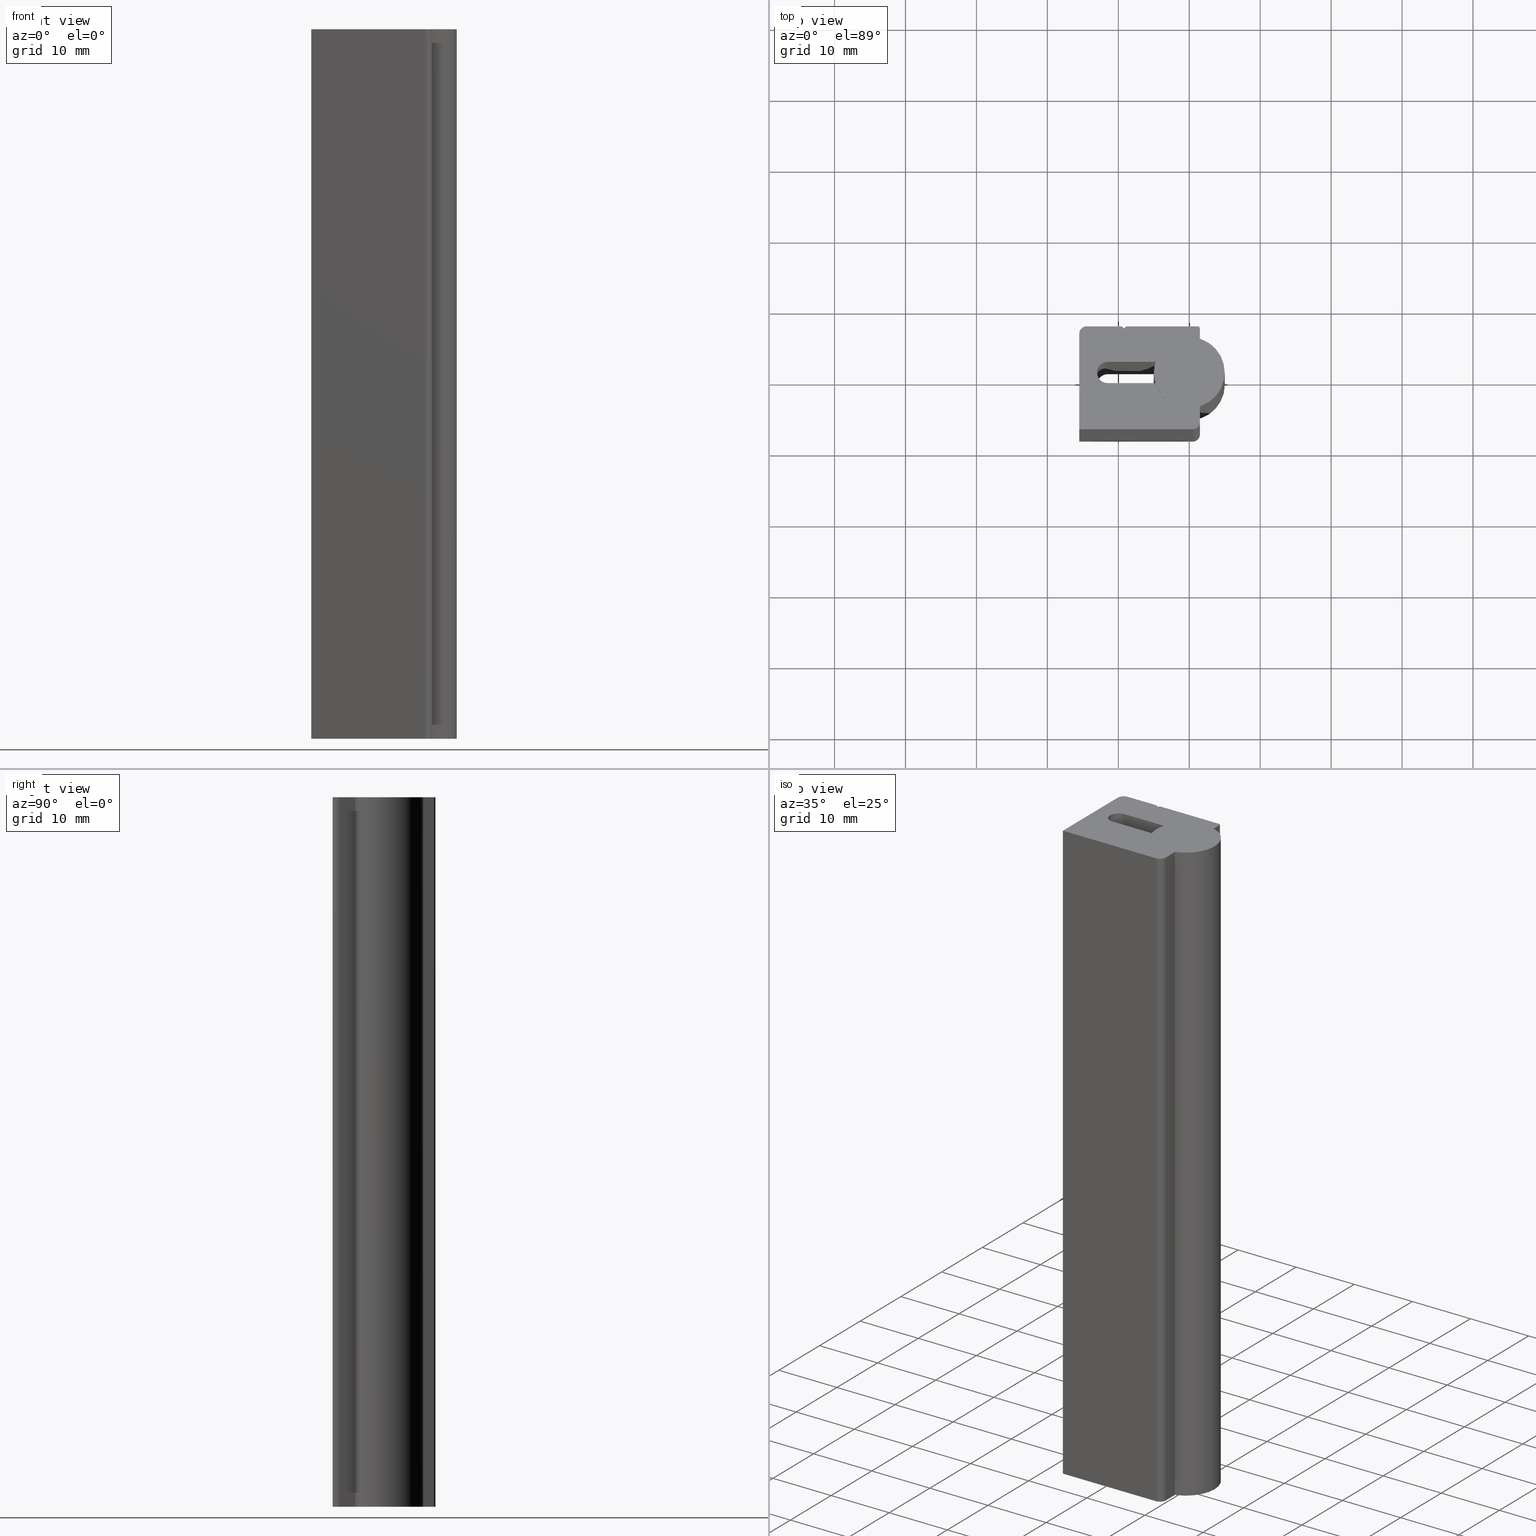
[diagram: canonical four-view strip — front | top / right | iso, engineering-drawing reading convention]
A machine part, canonical four-view strip (front | top / right | iso — engineering-drawing reading convention). The complete STEP part file that produces these views, byte-faithful:
ISO-10303-21;
HEADER;
/* Generated by software containing ST-Developer
 * from STEP Tools, Inc. (www.steptools.com) 
 */

FILE_DESCRIPTION(
/* description */ ('PROFILO GUIDA LINEARE GS10'),
/* implementation_level */ '2;1');

FILE_NAME(
/* name */ 
'C:\\Users\\tecnico5\\Desktop\\SITOWEB\\BPRGD0000068\\BPRGD0000068.stp',

/* time_stamp */ '2022-07-27T09:05:28+02:00',
/* author */ ('tecnico3.vi'),
/* organization */ (''),
/* preprocessor_version */ 'ST-DEVELOPER v18.1',
/* originating_system */ 'Autodesk Inventor 2022',
/* authorisation */ '');

FILE_SCHEMA (('AUTOMOTIVE_DESIGN { 1 0 10303 214 3 1 1 }'));
ENDSEC;

DATA;
#10=MECHANICAL_DESIGN_GEOMETRIC_PRESENTATION_REPRESENTATION('',(#26,#27,
#28),#715);
#11=CONTEXT_DEPENDENT_OVER_RIDING_STYLED_ITEM('',(#747),#730,#28,(#17));
#12=MAPPED_ITEM('',#13,#476);
#13=REPRESENTATION_MAP(#476,#728);
#14=ITEM_DEFINED_TRANSFORMATION($,$,#437,#474);
#15=ITEM_DEFINED_TRANSFORMATION($,$,#468,#475);
#16=(
REPRESENTATION_RELATIONSHIP($,$,#729,#728)
REPRESENTATION_RELATIONSHIP_WITH_TRANSFORMATION(#14)
SHAPE_REPRESENTATION_RELATIONSHIP()
);
#17=(
REPRESENTATION_RELATIONSHIP($,$,#730,#728)
REPRESENTATION_RELATIONSHIP_WITH_TRANSFORMATION(#15)
SHAPE_REPRESENTATION_RELATIONSHIP()
);
#18=CONTEXT_DEPENDENT_SHAPE_REPRESENTATION(#16,#726);
#19=CONTEXT_DEPENDENT_SHAPE_REPRESENTATION(#17,#727);
#20=NEXT_ASSEMBLY_USAGE_OCCURRENCE('958510003971:1','958510003971:1',
'958510003971:1',#732,#733,'958510003971:1');
#21=NEXT_ASSEMBLY_USAGE_OCCURRENCE('Parte1:1','Parte1:1','Parte1:1',#732,
#734,'Parte1:1');
#22=SHAPE_REPRESENTATION_RELATIONSHIP('SRR','None',#729,#24);
#23=SHAPE_REPRESENTATION_RELATIONSHIP('SRR','None',#730,#25);
#24=ADVANCED_BREP_SHAPE_REPRESENTATION('',(#29),#713);
#25=ADVANCED_BREP_SHAPE_REPRESENTATION('',(#30),#714);
#26=STYLED_ITEM('',(#748),#29);
#27=STYLED_ITEM('',(#749),#30);
#28=STYLED_ITEM('',(#750),#12);
#29=MANIFOLD_SOLID_BREP('Solido1',#390);
#30=MANIFOLD_SOLID_BREP('Solido1',#391);
#31=CIRCLE('',#441,1.);
#32=CIRCLE('',#442,1.);
#33=CIRCLE('',#448,0.3);
#34=CIRCLE('',#449,0.3);
#35=CIRCLE('',#452,5.);
#36=CIRCLE('',#453,5.);
#37=CIRCLE('',#456,1.49999999999616);
#38=CIRCLE('',#457,1.49999999999616);
#39=CIRCLE('',#460,5.00000000000274);
#40=CIRCLE('',#461,5.00000000000274);
#41=CIRCLE('',#464,1.);
#42=CIRCLE('',#465,1.);
#43=CIRCLE('',#470,5.);
#44=CIRCLE('',#471,5.);
#45=CYLINDRICAL_SURFACE('',#440,1.);
#46=CYLINDRICAL_SURFACE('',#447,0.3);
#47=CYLINDRICAL_SURFACE('',#451,5.);
#48=CYLINDRICAL_SURFACE('',#455,1.49999999999616);
#49=CYLINDRICAL_SURFACE('',#459,5.00000000000274);
#50=CYLINDRICAL_SURFACE('',#463,1.);
#51=CYLINDRICAL_SURFACE('',#469,5.);
#52=FACE_OUTER_BOUND('',#73,.T.);
#53=FACE_OUTER_BOUND('',#74,.T.);
#54=FACE_OUTER_BOUND('',#75,.T.);
#55=FACE_OUTER_BOUND('',#76,.T.);
#56=FACE_OUTER_BOUND('',#77,.T.);
#57=FACE_OUTER_BOUND('',#78,.T.);
#58=FACE_OUTER_BOUND('',#79,.T.);
#59=FACE_OUTER_BOUND('',#80,.T.);
#60=FACE_OUTER_BOUND('',#81,.T.);
#61=FACE_OUTER_BOUND('',#82,.T.);
#62=FACE_OUTER_BOUND('',#83,.T.);
#63=FACE_OUTER_BOUND('',#84,.T.);
#64=FACE_OUTER_BOUND('',#85,.T.);
#65=FACE_OUTER_BOUND('',#86,.T.);
#66=FACE_OUTER_BOUND('',#87,.T.);
#67=FACE_OUTER_BOUND('',#88,.T.);
#68=FACE_OUTER_BOUND('',#89,.T.);
#69=FACE_OUTER_BOUND('',#90,.T.);
#70=FACE_OUTER_BOUND('',#91,.T.);
#71=FACE_OUTER_BOUND('',#92,.T.);
#72=FACE_OUTER_BOUND('',#93,.T.);
#73=EDGE_LOOP('',(#253,#254,#255,#256));
#74=EDGE_LOOP('',(#257,#258,#259,#260));
#75=EDGE_LOOP('',(#261,#262,#263,#264));
#76=EDGE_LOOP('',(#265,#266,#267,#268));
#77=EDGE_LOOP('',(#269,#270,#271,#272));
#78=EDGE_LOOP('',(#273,#274,#275,#276));
#79=EDGE_LOOP('',(#277,#278,#279,#280));
#80=EDGE_LOOP('',(#281,#282,#283,#284));
#81=EDGE_LOOP('',(#285,#286,#287,#288));
#82=EDGE_LOOP('',(#289,#290,#291,#292));
#83=EDGE_LOOP('',(#293,#294,#295,#296));
#84=EDGE_LOOP('',(#297,#298,#299,#300));
#85=EDGE_LOOP('',(#301,#302,#303,#304));
#86=EDGE_LOOP('',(#305,#306,#307,#308));
#87=EDGE_LOOP('',(#309,#310,#311,#312));
#88=EDGE_LOOP('',(#313,#314,#315,#316));
#89=EDGE_LOOP('',(#317,#318,#319,#320,#321,#322,#323,#324,#325,#326,#327,
#328,#329,#330,#331,#332));
#90=EDGE_LOOP('',(#333,#334,#335,#336,#337,#338,#339,#340,#341,#342,#343,
#344,#345,#346,#347,#348));
#91=EDGE_LOOP('',(#349,#350,#351,#352));
#92=EDGE_LOOP('',(#353));
#93=EDGE_LOOP('',(#354));
#94=LINE('',#601,#131);
#95=LINE('',#603,#132);
#96=LINE('',#605,#133);
#97=LINE('',#606,#134);
#98=LINE('',#609,#135);
#99=LINE('',#611,#136);
#100=LINE('',#612,#137);
#101=LINE('',#618,#138);
#102=LINE('',#621,#139);
#103=LINE('',#623,#140);
#104=LINE('',#624,#141);
#105=LINE('',#627,#142);
#106=LINE('',#629,#143);
#107=LINE('',#630,#144);
#108=LINE('',#633,#145);
#109=LINE('',#635,#146);
#110=LINE('',#636,#147);
#111=LINE('',#639,#148);
#112=LINE('',#641,#149);
#113=LINE('',#642,#150);
#114=LINE('',#648,#151);
#115=LINE('',#651,#152);
#116=LINE('',#653,#153);
#117=LINE('',#654,#154);
#118=LINE('',#660,#155);
#119=LINE('',#663,#156);
#120=LINE('',#665,#157);
#121=LINE('',#666,#158);
#122=LINE('',#672,#159);
#123=LINE('',#675,#160);
#124=LINE('',#677,#161);
#125=LINE('',#678,#162);
#126=LINE('',#684,#163);
#127=LINE('',#687,#164);
#128=LINE('',#689,#165);
#129=LINE('',#690,#166);
#130=LINE('',#701,#167);
#131=VECTOR('',#483,10.);
#132=VECTOR('',#484,10.);
#133=VECTOR('',#485,10.);
#134=VECTOR('',#486,10.);
#135=VECTOR('',#489,10.);
#136=VECTOR('',#490,10.);
#137=VECTOR('',#491,10.);
#138=VECTOR('',#498,10.);
#139=VECTOR('',#501,10.);
#140=VECTOR('',#502,10.);
#141=VECTOR('',#503,10.);
#142=VECTOR('',#506,10.);
#143=VECTOR('',#507,10.);
#144=VECTOR('',#508,10.);
#145=VECTOR('',#511,10.);
#146=VECTOR('',#512,10.);
#147=VECTOR('',#513,10.);
#148=VECTOR('',#516,10.);
#149=VECTOR('',#517,10.);
#150=VECTOR('',#518,10.);
#151=VECTOR('',#525,10.);
#152=VECTOR('',#528,10.);
#153=VECTOR('',#529,10.);
#154=VECTOR('',#530,10.);
#155=VECTOR('',#537,10.);
#156=VECTOR('',#540,10.);
#157=VECTOR('',#541,10.);
#158=VECTOR('',#542,10.);
#159=VECTOR('',#549,10.);
#160=VECTOR('',#552,10.);
#161=VECTOR('',#553,10.);
#162=VECTOR('',#554,10.);
#163=VECTOR('',#561,10.);
#164=VECTOR('',#564,10.);
#165=VECTOR('',#565,10.);
#166=VECTOR('',#566,10.);
#167=VECTOR('',#583,5.);
#168=VERTEX_POINT('',#599);
#169=VERTEX_POINT('',#600);
#170=VERTEX_POINT('',#602);
#171=VERTEX_POINT('',#604);
#172=VERTEX_POINT('',#608);
#173=VERTEX_POINT('',#610);
#174=VERTEX_POINT('',#614);
#175=VERTEX_POINT('',#616);
#176=VERTEX_POINT('',#620);
#177=VERTEX_POINT('',#622);
#178=VERTEX_POINT('',#626);
#179=VERTEX_POINT('',#628);
#180=VERTEX_POINT('',#632);
#181=VERTEX_POINT('',#634);
#182=VERTEX_POINT('',#638);
#183=VERTEX_POINT('',#640);
#184=VERTEX_POINT('',#644);
#185=VERTEX_POINT('',#646);
#186=VERTEX_POINT('',#650);
#187=VERTEX_POINT('',#652);
#188=VERTEX_POINT('',#656);
#189=VERTEX_POINT('',#658);
#190=VERTEX_POINT('',#662);
#191=VERTEX_POINT('',#664);
#192=VERTEX_POINT('',#668);
#193=VERTEX_POINT('',#670);
#194=VERTEX_POINT('',#674);
#195=VERTEX_POINT('',#676);
#196=VERTEX_POINT('',#680);
#197=VERTEX_POINT('',#682);
#198=VERTEX_POINT('',#686);
#199=VERTEX_POINT('',#688);
#200=VERTEX_POINT('',#698);
#201=VERTEX_POINT('',#700);
#202=EDGE_CURVE('',#168,#169,#94,.T.);
#203=EDGE_CURVE('',#169,#170,#95,.T.);
#204=EDGE_CURVE('',#171,#170,#96,.T.);
#205=EDGE_CURVE('',#168,#171,#97,.T.);
#206=EDGE_CURVE('',#172,#168,#98,.T.);
#207=EDGE_CURVE('',#173,#171,#99,.T.);
#208=EDGE_CURVE('',#172,#173,#100,.T.);
#209=EDGE_CURVE('',#174,#172,#31,.T.);
#210=EDGE_CURVE('',#175,#173,#32,.T.);
#211=EDGE_CURVE('',#174,#175,#101,.T.);
#212=EDGE_CURVE('',#176,#174,#102,.T.);
#213=EDGE_CURVE('',#177,#175,#103,.T.);
#214=EDGE_CURVE('',#176,#177,#104,.T.);
#215=EDGE_CURVE('',#178,#176,#105,.T.);
#216=EDGE_CURVE('',#179,#177,#106,.T.);
#217=EDGE_CURVE('',#178,#179,#107,.T.);
#218=EDGE_CURVE('',#180,#178,#108,.T.);
#219=EDGE_CURVE('',#181,#179,#109,.T.);
#220=EDGE_CURVE('',#180,#181,#110,.T.);
#221=EDGE_CURVE('',#182,#180,#111,.T.);
#222=EDGE_CURVE('',#183,#181,#112,.T.);
#223=EDGE_CURVE('',#182,#183,#113,.T.);
#224=EDGE_CURVE('',#184,#182,#33,.T.);
#225=EDGE_CURVE('',#185,#183,#34,.T.);
#226=EDGE_CURVE('',#184,#185,#114,.T.);
#227=EDGE_CURVE('',#186,#184,#115,.T.);
#228=EDGE_CURVE('',#187,#185,#116,.T.);
#229=EDGE_CURVE('',#186,#187,#117,.T.);
#230=EDGE_CURVE('',#188,#186,#35,.T.);
#231=EDGE_CURVE('',#189,#187,#36,.T.);
#232=EDGE_CURVE('',#188,#189,#118,.T.);
#233=EDGE_CURVE('',#190,#188,#119,.T.);
#234=EDGE_CURVE('',#191,#189,#120,.T.);
#235=EDGE_CURVE('',#190,#191,#121,.T.);
#236=EDGE_CURVE('',#192,#190,#37,.T.);
#237=EDGE_CURVE('',#193,#191,#38,.T.);
#238=EDGE_CURVE('',#192,#193,#122,.T.);
#239=EDGE_CURVE('',#194,#192,#123,.T.);
#240=EDGE_CURVE('',#195,#193,#124,.T.);
#241=EDGE_CURVE('',#194,#195,#125,.T.);
#242=EDGE_CURVE('',#196,#194,#39,.T.);
#243=EDGE_CURVE('',#197,#195,#40,.T.);
#244=EDGE_CURVE('',#196,#197,#126,.T.);
#245=EDGE_CURVE('',#198,#196,#127,.T.);
#246=EDGE_CURVE('',#199,#197,#128,.T.);
#247=EDGE_CURVE('',#198,#199,#129,.T.);
#248=EDGE_CURVE('',#169,#198,#41,.T.);
#249=EDGE_CURVE('',#170,#199,#42,.T.);
#250=EDGE_CURVE('',#200,#200,#43,.T.);
#251=EDGE_CURVE('',#200,#201,#130,.T.);
#252=EDGE_CURVE('',#201,#201,#44,.T.);
#253=ORIENTED_EDGE('',*,*,#202,.T.);
#254=ORIENTED_EDGE('',*,*,#203,.T.);
#255=ORIENTED_EDGE('',*,*,#204,.F.);
#256=ORIENTED_EDGE('',*,*,#205,.F.);
#257=ORIENTED_EDGE('',*,*,#206,.T.);
#258=ORIENTED_EDGE('',*,*,#205,.T.);
#259=ORIENTED_EDGE('',*,*,#207,.F.);
#260=ORIENTED_EDGE('',*,*,#208,.F.);
#261=ORIENTED_EDGE('',*,*,#209,.T.);
#262=ORIENTED_EDGE('',*,*,#208,.T.);
#263=ORIENTED_EDGE('',*,*,#210,.F.);
#264=ORIENTED_EDGE('',*,*,#211,.F.);
#265=ORIENTED_EDGE('',*,*,#212,.T.);
#266=ORIENTED_EDGE('',*,*,#211,.T.);
#267=ORIENTED_EDGE('',*,*,#213,.F.);
#268=ORIENTED_EDGE('',*,*,#214,.F.);
#269=ORIENTED_EDGE('',*,*,#215,.T.);
#270=ORIENTED_EDGE('',*,*,#214,.T.);
#271=ORIENTED_EDGE('',*,*,#216,.F.);
#272=ORIENTED_EDGE('',*,*,#217,.F.);
#273=ORIENTED_EDGE('',*,*,#218,.T.);
#274=ORIENTED_EDGE('',*,*,#217,.T.);
#275=ORIENTED_EDGE('',*,*,#219,.F.);
#276=ORIENTED_EDGE('',*,*,#220,.F.);
#277=ORIENTED_EDGE('',*,*,#221,.T.);
#278=ORIENTED_EDGE('',*,*,#220,.T.);
#279=ORIENTED_EDGE('',*,*,#222,.F.);
#280=ORIENTED_EDGE('',*,*,#223,.F.);
#281=ORIENTED_EDGE('',*,*,#224,.T.);
#282=ORIENTED_EDGE('',*,*,#223,.T.);
#283=ORIENTED_EDGE('',*,*,#225,.F.);
#284=ORIENTED_EDGE('',*,*,#226,.F.);
#285=ORIENTED_EDGE('',*,*,#227,.T.);
#286=ORIENTED_EDGE('',*,*,#226,.T.);
#287=ORIENTED_EDGE('',*,*,#228,.F.);
#288=ORIENTED_EDGE('',*,*,#229,.F.);
#289=ORIENTED_EDGE('',*,*,#230,.T.);
#290=ORIENTED_EDGE('',*,*,#229,.T.);
#291=ORIENTED_EDGE('',*,*,#231,.F.);
#292=ORIENTED_EDGE('',*,*,#232,.F.);
#293=ORIENTED_EDGE('',*,*,#233,.T.);
#294=ORIENTED_EDGE('',*,*,#232,.T.);
#295=ORIENTED_EDGE('',*,*,#234,.F.);
#296=ORIENTED_EDGE('',*,*,#235,.F.);
#297=ORIENTED_EDGE('',*,*,#236,.T.);
#298=ORIENTED_EDGE('',*,*,#235,.T.);
#299=ORIENTED_EDGE('',*,*,#237,.F.);
#300=ORIENTED_EDGE('',*,*,#238,.F.);
#301=ORIENTED_EDGE('',*,*,#239,.T.);
#302=ORIENTED_EDGE('',*,*,#238,.T.);
#303=ORIENTED_EDGE('',*,*,#240,.F.);
#304=ORIENTED_EDGE('',*,*,#241,.F.);
#305=ORIENTED_EDGE('',*,*,#242,.T.);
#306=ORIENTED_EDGE('',*,*,#241,.T.);
#307=ORIENTED_EDGE('',*,*,#243,.F.);
#308=ORIENTED_EDGE('',*,*,#244,.F.);
#309=ORIENTED_EDGE('',*,*,#245,.T.);
#310=ORIENTED_EDGE('',*,*,#244,.T.);
#311=ORIENTED_EDGE('',*,*,#246,.F.);
#312=ORIENTED_EDGE('',*,*,#247,.F.);
#313=ORIENTED_EDGE('',*,*,#248,.T.);
#314=ORIENTED_EDGE('',*,*,#247,.T.);
#315=ORIENTED_EDGE('',*,*,#249,.F.);
#316=ORIENTED_EDGE('',*,*,#203,.F.);
#317=ORIENTED_EDGE('',*,*,#249,.T.);
#318=ORIENTED_EDGE('',*,*,#246,.T.);
#319=ORIENTED_EDGE('',*,*,#243,.T.);
#320=ORIENTED_EDGE('',*,*,#240,.T.);
#321=ORIENTED_EDGE('',*,*,#237,.T.);
#322=ORIENTED_EDGE('',*,*,#234,.T.);
#323=ORIENTED_EDGE('',*,*,#231,.T.);
#324=ORIENTED_EDGE('',*,*,#228,.T.);
#325=ORIENTED_EDGE('',*,*,#225,.T.);
#326=ORIENTED_EDGE('',*,*,#222,.T.);
#327=ORIENTED_EDGE('',*,*,#219,.T.);
#328=ORIENTED_EDGE('',*,*,#216,.T.);
#329=ORIENTED_EDGE('',*,*,#213,.T.);
#330=ORIENTED_EDGE('',*,*,#210,.T.);
#331=ORIENTED_EDGE('',*,*,#207,.T.);
#332=ORIENTED_EDGE('',*,*,#204,.T.);
#333=ORIENTED_EDGE('',*,*,#248,.F.);
#334=ORIENTED_EDGE('',*,*,#202,.F.);
#335=ORIENTED_EDGE('',*,*,#206,.F.);
#336=ORIENTED_EDGE('',*,*,#209,.F.);
#337=ORIENTED_EDGE('',*,*,#212,.F.);
#338=ORIENTED_EDGE('',*,*,#215,.F.);
#339=ORIENTED_EDGE('',*,*,#218,.F.);
#340=ORIENTED_EDGE('',*,*,#221,.F.);
#341=ORIENTED_EDGE('',*,*,#224,.F.);
#342=ORIENTED_EDGE('',*,*,#227,.F.);
#343=ORIENTED_EDGE('',*,*,#230,.F.);
#344=ORIENTED_EDGE('',*,*,#233,.F.);
#345=ORIENTED_EDGE('',*,*,#236,.F.);
#346=ORIENTED_EDGE('',*,*,#239,.F.);
#347=ORIENTED_EDGE('',*,*,#242,.F.);
#348=ORIENTED_EDGE('',*,*,#245,.F.);
#349=ORIENTED_EDGE('',*,*,#250,.F.);
#350=ORIENTED_EDGE('',*,*,#251,.T.);
#351=ORIENTED_EDGE('',*,*,#252,.T.);
#352=ORIENTED_EDGE('',*,*,#251,.F.);
#353=ORIENTED_EDGE('',*,*,#250,.T.);
#354=ORIENTED_EDGE('',*,*,#252,.F.);
#355=PLANE('',#438);
#356=PLANE('',#439);
#357=PLANE('',#443);
#358=PLANE('',#444);
#359=PLANE('',#445);
#360=PLANE('',#446);
#361=PLANE('',#450);
#362=PLANE('',#454);
#363=PLANE('',#458);
#364=PLANE('',#462);
#365=PLANE('',#466);
#366=PLANE('',#467);
#367=PLANE('',#472);
#368=PLANE('',#473);
#369=ADVANCED_FACE('',(#52),#355,.T.);
#370=ADVANCED_FACE('',(#53),#356,.T.);
#371=ADVANCED_FACE('',(#54),#45,.T.);
#372=ADVANCED_FACE('',(#55),#357,.T.);
#373=ADVANCED_FACE('',(#56),#358,.T.);
#374=ADVANCED_FACE('',(#57),#359,.T.);
#375=ADVANCED_FACE('',(#58),#360,.T.);
#376=ADVANCED_FACE('',(#59),#46,.T.);
#377=ADVANCED_FACE('',(#60),#361,.T.);
#378=ADVANCED_FACE('',(#61),#47,.F.);
#379=ADVANCED_FACE('',(#62),#362,.T.);
#380=ADVANCED_FACE('',(#63),#48,.F.);
#381=ADVANCED_FACE('',(#64),#363,.T.);
#382=ADVANCED_FACE('',(#65),#49,.F.);
#383=ADVANCED_FACE('',(#66),#364,.T.);
#384=ADVANCED_FACE('',(#67),#50,.T.);
#385=ADVANCED_FACE('',(#68),#365,.T.);
#386=ADVANCED_FACE('',(#69),#366,.F.);
#387=ADVANCED_FACE('',(#70),#51,.T.);
#388=ADVANCED_FACE('',(#71),#367,.T.);
#389=ADVANCED_FACE('',(#72),#368,.F.);
#390=CLOSED_SHELL('',(#369,#370,#371,#372,#373,#374,#375,#376,#377,#378,
#379,#380,#381,#382,#383,#384,#385,#386));
#391=CLOSED_SHELL('',(#387,#388,#389));
#392=DERIVED_UNIT_ELEMENT(#397,1.);
#393=DERIVED_UNIT_ELEMENT(#717,-3.);
#394=DERIVED_UNIT_ELEMENT(#397,1.);
#395=DERIVED_UNIT_ELEMENT(#717,-3.);
#396=DIMENSIONAL_EXPONENTS(1.,0.,0.,0.,0.,0.,0.);
#397=(
CONVERSION_BASED_UNIT('gram',#399)
MASS_UNIT()
NAMED_UNIT(#396)
);
#398=(
MASS_UNIT()
NAMED_UNIT(*)
SI_UNIT(.KILO.,.GRAM.)
);
#399=MASS_MEASURE_WITH_UNIT(MASS_MEASURE(0.001),#398);
#400=DERIVED_UNIT((#392,#393));
#401=DERIVED_UNIT((#394,#395));
#402=MEASURE_REPRESENTATION_ITEM('density measure',
POSITIVE_RATIO_MEASURE(2.71),#400);
#403=MEASURE_REPRESENTATION_ITEM('density measure',
POSITIVE_RATIO_MEASURE(1.),#401);
#404=PROPERTY_DEFINITION_REPRESENTATION(#414,#408);
#405=PROPERTY_DEFINITION_REPRESENTATION(#415,#409);
#406=PROPERTY_DEFINITION_REPRESENTATION(#416,#410);
#407=PROPERTY_DEFINITION_REPRESENTATION(#417,#411);
#408=REPRESENTATION('material name',(#412),#713);
#409=REPRESENTATION('density',(#402),#713);
#410=REPRESENTATION('material name',(#413),#714);
#411=REPRESENTATION('density',(#403),#714);
#412=DESCRIPTIVE_REPRESENTATION_ITEM('Alluminio 6060 Anticorodal',
'Alluminio 6060 Anticorodal');
#413=DESCRIPTIVE_REPRESENTATION_ITEM('Generico','Generico');
#414=PROPERTY_DEFINITION('material property','material name',#733);
#415=PROPERTY_DEFINITION('material property','density of part',#733);
#416=PROPERTY_DEFINITION('material property','material name',#734);
#417=PROPERTY_DEFINITION('material property','density of part',#734);
#418=DATE_TIME_ROLE('creation_date');
#419=DATE_TIME_ROLE('creation_date');
#420=DATE_TIME_ROLE('creation_date');
#421=APPLIED_DATE_AND_TIME_ASSIGNMENT(#424,#418,(#732));
#422=APPLIED_DATE_AND_TIME_ASSIGNMENT(#425,#419,(#733));
#423=APPLIED_DATE_AND_TIME_ASSIGNMENT(#426,#420,(#734));
#424=DATE_AND_TIME(#427,#430);
#425=DATE_AND_TIME(#428,#431);
#426=DATE_AND_TIME(#429,#432);
#427=CALENDAR_DATE(2013,7,6);
#428=CALENDAR_DATE(2015,19,2);
#429=CALENDAR_DATE(2022,27,7);
#430=LOCAL_TIME(0,0,0.,#433);
#431=LOCAL_TIME(0,0,0.,#434);
#432=LOCAL_TIME(0,0,0.,#435);
#433=COORDINATED_UNIVERSAL_TIME_OFFSET(0,0,.BEHIND.);
#434=COORDINATED_UNIVERSAL_TIME_OFFSET(0,0,.BEHIND.);
#435=COORDINATED_UNIVERSAL_TIME_OFFSET(0,0,.BEHIND.);
#436=AXIS2_PLACEMENT_3D('placement',#596,#477,#478);
#437=AXIS2_PLACEMENT_3D('placement',#597,#479,#480);
#438=AXIS2_PLACEMENT_3D('',#598,#481,#482);
#439=AXIS2_PLACEMENT_3D('',#607,#487,#488);
#440=AXIS2_PLACEMENT_3D('',#613,#492,#493);
#441=AXIS2_PLACEMENT_3D('',#615,#494,#495);
#442=AXIS2_PLACEMENT_3D('',#617,#496,#497);
#443=AXIS2_PLACEMENT_3D('',#619,#499,#500);
#444=AXIS2_PLACEMENT_3D('',#625,#504,#505);
#445=AXIS2_PLACEMENT_3D('',#631,#509,#510);
#446=AXIS2_PLACEMENT_3D('',#637,#514,#515);
#447=AXIS2_PLACEMENT_3D('',#643,#519,#520);
#448=AXIS2_PLACEMENT_3D('',#645,#521,#522);
#449=AXIS2_PLACEMENT_3D('',#647,#523,#524);
#450=AXIS2_PLACEMENT_3D('',#649,#526,#527);
#451=AXIS2_PLACEMENT_3D('',#655,#531,#532);
#452=AXIS2_PLACEMENT_3D('',#657,#533,#534);
#453=AXIS2_PLACEMENT_3D('',#659,#535,#536);
#454=AXIS2_PLACEMENT_3D('',#661,#538,#539);
#455=AXIS2_PLACEMENT_3D('',#667,#543,#544);
#456=AXIS2_PLACEMENT_3D('',#669,#545,#546);
#457=AXIS2_PLACEMENT_3D('',#671,#547,#548);
#458=AXIS2_PLACEMENT_3D('',#673,#550,#551);
#459=AXIS2_PLACEMENT_3D('',#679,#555,#556);
#460=AXIS2_PLACEMENT_3D('',#681,#557,#558);
#461=AXIS2_PLACEMENT_3D('',#683,#559,#560);
#462=AXIS2_PLACEMENT_3D('',#685,#562,#563);
#463=AXIS2_PLACEMENT_3D('',#691,#567,#568);
#464=AXIS2_PLACEMENT_3D('',#692,#569,#570);
#465=AXIS2_PLACEMENT_3D('',#693,#571,#572);
#466=AXIS2_PLACEMENT_3D('',#694,#573,#574);
#467=AXIS2_PLACEMENT_3D('',#695,#575,#576);
#468=AXIS2_PLACEMENT_3D('placement',#696,#577,#578);
#469=AXIS2_PLACEMENT_3D('',#697,#579,#580);
#470=AXIS2_PLACEMENT_3D('',#699,#581,#582);
#471=AXIS2_PLACEMENT_3D('',#702,#584,#585);
#472=AXIS2_PLACEMENT_3D('',#703,#586,#587);
#473=AXIS2_PLACEMENT_3D('',#704,#588,#589);
#474=AXIS2_PLACEMENT_3D('',#705,#590,#591);
#475=AXIS2_PLACEMENT_3D('',#706,#592,#593);
#476=AXIS2_PLACEMENT_3D('',#707,#594,#595);
#477=DIRECTION('axis',(0.,0.,1.));
#478=DIRECTION('refdir',(1.,0.,0.));
#479=DIRECTION('axis',(0.,0.,1.));
#480=DIRECTION('refdir',(1.,0.,0.));
#481=DIRECTION('center_axis',(6.93889390390723E-17,-1.,0.));
#482=DIRECTION('ref_axis',(1.,6.93889390390723E-17,0.));
#483=DIRECTION('',(1.,6.93889390390723E-17,0.));
#484=DIRECTION('',(0.,0.,1.));
#485=DIRECTION('',(1.,6.93889390390723E-17,0.));
#486=DIRECTION('',(0.,0.,1.));
#487=DIRECTION('center_axis',(-1.,-4.93432455388958E-16,0.));
#488=DIRECTION('ref_axis',(4.93432455388958E-16,-1.,0.));
#489=DIRECTION('',(4.93432455388958E-16,-1.,0.));
#490=DIRECTION('',(4.93432455388958E-16,-1.,0.));
#491=DIRECTION('',(0.,0.,1.));
#492=DIRECTION('center_axis',(0.,0.,1.));
#493=DIRECTION('ref_axis',(0.,1.,0.));
#494=DIRECTION('center_axis',(0.,0.,1.));
#495=DIRECTION('ref_axis',(0.,1.,0.));
#496=DIRECTION('center_axis',(0.,0.,1.));
#497=DIRECTION('ref_axis',(0.,1.,0.));
#498=DIRECTION('',(0.,0.,1.));
#499=DIRECTION('center_axis',(2.22044604925309E-16,1.,0.));
#500=DIRECTION('ref_axis',(-1.,2.22044604925309E-16,0.));
#501=DIRECTION('',(-1.,2.22044604925309E-16,0.));
#502=DIRECTION('',(-1.,2.22044604925309E-16,0.));
#503=DIRECTION('',(0.,0.,1.));
#504=DIRECTION('center_axis',(0.707106781186244,0.707106781186851,0.));
#505=DIRECTION('ref_axis',(-0.707106781186851,0.707106781186244,0.));
#506=DIRECTION('',(-0.707106781186851,0.707106781186244,0.));
#507=DIRECTION('',(-0.707106781186851,0.707106781186244,0.));
#508=DIRECTION('',(0.,0.,1.));
#509=DIRECTION('center_axis',(-0.707106781186851,0.707106781186244,0.));
#510=DIRECTION('ref_axis',(-0.707106781186244,-0.707106781186851,0.));
#511=DIRECTION('',(-0.707106781186244,-0.707106781186851,0.));
#512=DIRECTION('',(-0.707106781186244,-0.707106781186851,0.));
#513=DIRECTION('',(0.,0.,1.));
#514=DIRECTION('center_axis',(-1.09923071745126E-16,1.,0.));
#515=DIRECTION('ref_axis',(-1.,-1.09923071745126E-16,0.));
#516=DIRECTION('',(-1.,-1.09923071745126E-16,0.));
#517=DIRECTION('',(-1.,-1.09923071745126E-16,0.));
#518=DIRECTION('',(0.,0.,1.));
#519=DIRECTION('center_axis',(0.,0.,1.));
#520=DIRECTION('ref_axis',(1.,0.,0.));
#521=DIRECTION('center_axis',(0.,0.,1.));
#522=DIRECTION('ref_axis',(1.,0.,0.));
#523=DIRECTION('center_axis',(0.,0.,1.));
#524=DIRECTION('ref_axis',(1.,0.,0.));
#525=DIRECTION('',(0.,0.,1.));
#526=DIRECTION('center_axis',(1.,3.88107363932674E-16,0.));
#527=DIRECTION('ref_axis',(-3.88107363932674E-16,1.,0.));
#528=DIRECTION('',(-3.88107363932674E-16,1.,0.));
#529=DIRECTION('',(-3.88107363932674E-16,1.,0.));
#530=DIRECTION('',(0.,0.,1.));
#531=DIRECTION('center_axis',(0.,0.,1.));
#532=DIRECTION('ref_axis',(-0.3,-0.953939201416946,0.));
#533=DIRECTION('center_axis',(0.,0.,-1.));
#534=DIRECTION('ref_axis',(-0.3,-0.953939201416946,0.));
#535=DIRECTION('center_axis',(0.,0.,-1.));
#536=DIRECTION('ref_axis',(-0.3,-0.953939201416946,0.));
#537=DIRECTION('',(0.,0.,1.));
#538=DIRECTION('center_axis',(0.,-1.,0.));
#539=DIRECTION('ref_axis',(1.,0.,0.));
#540=DIRECTION('',(1.,0.,0.));
#541=DIRECTION('',(1.,0.,0.));
#542=DIRECTION('',(0.,0.,1.));
#543=DIRECTION('center_axis',(0.,0.,1.));
#544=DIRECTION('ref_axis',(0.,-1.,0.));
#545=DIRECTION('center_axis',(0.,0.,-1.));
#546=DIRECTION('ref_axis',(0.,-1.,0.));
#547=DIRECTION('center_axis',(0.,0.,-1.));
#548=DIRECTION('ref_axis',(0.,-1.,0.));
#549=DIRECTION('',(0.,0.,1.));
#550=DIRECTION('center_axis',(1.6495882292902E-16,1.,0.));
#551=DIRECTION('ref_axis',(-1.,1.6495882292902E-16,0.));
#552=DIRECTION('',(-1.,1.6495882292902E-16,0.));
#553=DIRECTION('',(-1.,1.6495882292902E-16,0.));
#554=DIRECTION('',(0.,0.,1.));
#555=DIRECTION('center_axis',(0.,0.,1.));
#556=DIRECTION('ref_axis',(0.953939201417185,0.299999999999239,0.));
#557=DIRECTION('center_axis',(0.,0.,-1.));
#558=DIRECTION('ref_axis',(0.953939201417185,0.299999999999239,0.));
#559=DIRECTION('center_axis',(0.,0.,-1.));
#560=DIRECTION('ref_axis',(0.953939201417185,0.299999999999239,0.));
#561=DIRECTION('',(0.,0.,1.));
#562=DIRECTION('center_axis',(1.,2.48894999998454E-16,0.));
#563=DIRECTION('ref_axis',(-2.48894999998454E-16,1.,0.));
#564=DIRECTION('',(-2.48894999998454E-16,1.,0.));
#565=DIRECTION('',(-2.48894999998454E-16,1.,0.));
#566=DIRECTION('',(0.,0.,1.));
#567=DIRECTION('center_axis',(0.,0.,1.));
#568=DIRECTION('ref_axis',(0.,-1.,0.));
#569=DIRECTION('center_axis',(0.,0.,1.));
#570=DIRECTION('ref_axis',(0.,-1.,0.));
#571=DIRECTION('center_axis',(0.,0.,1.));
#572=DIRECTION('ref_axis',(0.,-1.,0.));
#573=DIRECTION('center_axis',(0.,0.,1.));
#574=DIRECTION('ref_axis',(1.,0.,0.));
#575=DIRECTION('center_axis',(0.,0.,1.));
#576=DIRECTION('ref_axis',(1.,0.,0.));
#577=DIRECTION('axis',(0.,0.,1.));
#578=DIRECTION('refdir',(1.,0.,0.));
#579=DIRECTION('center_axis',(0.,0.,1.));
#580=DIRECTION('ref_axis',(1.,0.,0.));
#581=DIRECTION('center_axis',(0.,0.,1.));
#582=DIRECTION('ref_axis',(1.,0.,0.));
#583=DIRECTION('',(0.,0.,-1.));
#584=DIRECTION('center_axis',(0.,0.,1.));
#585=DIRECTION('ref_axis',(1.,0.,0.));
#586=DIRECTION('center_axis',(0.,0.,1.));
#587=DIRECTION('ref_axis',(1.,0.,0.));
#588=DIRECTION('center_axis',(0.,0.,1.));
#589=DIRECTION('ref_axis',(1.,0.,0.));
#590=DIRECTION('',(0.,0.,1.));
#591=DIRECTION('',(1.,0.,0.));
#592=DIRECTION('',(0.,0.,1.));
#593=DIRECTION('',(1.,0.,0.));
#594=DIRECTION('center_axis',(0.,0.,1.));
#595=DIRECTION('ref_axis',(1.,0.,0.));
#596=CARTESIAN_POINT('',(0.,0.,0.));
#597=CARTESIAN_POINT('',(0.,0.,0.));
#598=CARTESIAN_POINT('Origin',(-15.5,-8.00000000000038,0.));
#599=CARTESIAN_POINT('',(-15.5,-8.00000000000038,0.));
#600=CARTESIAN_POINT('',(0.500000000000001,-8.00000000000038,0.));
#601=CARTESIAN_POINT('',(-15.5,-8.00000000000038,0.));
#602=CARTESIAN_POINT('',(0.500000000000001,-8.00000000000038,100.));
#603=CARTESIAN_POINT('',(0.500000000000001,-8.00000000000038,0.));
#604=CARTESIAN_POINT('',(-15.5,-8.00000000000038,100.));
#605=CARTESIAN_POINT('',(-15.5,-8.00000000000038,100.));
#606=CARTESIAN_POINT('',(-15.5,-8.00000000000038,0.));
#607=CARTESIAN_POINT('Origin',(-15.5,5.49999999999962,0.));
#608=CARTESIAN_POINT('',(-15.5,5.49999999999962,0.));
#609=CARTESIAN_POINT('',(-15.5,5.49999999999962,0.));
#610=CARTESIAN_POINT('',(-15.5,5.49999999999962,100.));
#611=CARTESIAN_POINT('',(-15.5,5.49999999999962,100.));
#612=CARTESIAN_POINT('',(-15.5,5.49999999999962,0.));
#613=CARTESIAN_POINT('Origin',(-14.5,5.49999999999962,0.));
#614=CARTESIAN_POINT('',(-14.5,6.49999999999962,0.));
#615=CARTESIAN_POINT('Origin',(-14.5,5.49999999999962,0.));
#616=CARTESIAN_POINT('',(-14.5,6.49999999999962,100.));
#617=CARTESIAN_POINT('Origin',(-14.5,5.49999999999962,100.));
#618=CARTESIAN_POINT('',(-14.5,6.49999999999962,0.));
#619=CARTESIAN_POINT('Origin',(-9.50000000000626,6.49999999999962,0.));
#620=CARTESIAN_POINT('',(-9.50000000000626,6.49999999999962,0.));
#621=CARTESIAN_POINT('',(-9.50000000000626,6.49999999999962,0.));
#622=CARTESIAN_POINT('',(-9.50000000000626,6.49999999999962,100.));
#623=CARTESIAN_POINT('',(-9.50000000000626,6.49999999999962,100.));
#624=CARTESIAN_POINT('',(-9.50000000000626,6.49999999999962,0.));
#625=CARTESIAN_POINT('Origin',(-9.20000000000007,6.1999999999937,0.));
#626=CARTESIAN_POINT('',(-9.20000000000007,6.1999999999937,0.));
#627=CARTESIAN_POINT('',(-9.20000000000007,6.1999999999937,0.));
#628=CARTESIAN_POINT('',(-9.20000000000007,6.1999999999937,100.));
#629=CARTESIAN_POINT('',(-9.20000000000007,6.1999999999937,100.));
#630=CARTESIAN_POINT('',(-9.20000000000007,6.1999999999937,0.));
#631=CARTESIAN_POINT('Origin',(-8.89999999999441,6.49999999999962,0.));
#632=CARTESIAN_POINT('',(-8.89999999999441,6.49999999999962,0.));
#633=CARTESIAN_POINT('',(-8.89999999999441,6.49999999999962,0.));
#634=CARTESIAN_POINT('',(-8.89999999999441,6.49999999999962,100.));
#635=CARTESIAN_POINT('',(-8.89999999999441,6.49999999999962,100.));
#636=CARTESIAN_POINT('',(-8.89999999999441,6.49999999999962,0.));
#637=CARTESIAN_POINT('Origin',(1.2,6.49999999999962,0.));
#638=CARTESIAN_POINT('',(1.2,6.49999999999962,0.));
#639=CARTESIAN_POINT('',(1.2,6.49999999999962,0.));
#640=CARTESIAN_POINT('',(1.2,6.49999999999962,100.));
#641=CARTESIAN_POINT('',(1.2,6.49999999999962,100.));
#642=CARTESIAN_POINT('',(1.2,6.49999999999962,0.));
#643=CARTESIAN_POINT('Origin',(1.2,6.19999999999962,0.));
#644=CARTESIAN_POINT('',(1.5,6.19999999999962,0.));
#645=CARTESIAN_POINT('Origin',(1.2,6.19999999999962,0.));
#646=CARTESIAN_POINT('',(1.5,6.19999999999962,100.));
#647=CARTESIAN_POINT('Origin',(1.2,6.19999999999962,100.));
#648=CARTESIAN_POINT('',(1.5,6.19999999999962,0.));
#649=CARTESIAN_POINT('Origin',(1.5,4.76969600708473,0.));
#650=CARTESIAN_POINT('',(1.5,4.76969600708473,0.));
#651=CARTESIAN_POINT('',(1.5,4.76969600708473,0.));
#652=CARTESIAN_POINT('',(1.5,4.76969600708473,100.));
#653=CARTESIAN_POINT('',(1.5,4.76969600708473,100.));
#654=CARTESIAN_POINT('',(1.5,4.76969600708473,0.));
#655=CARTESIAN_POINT('Origin',(0.,0.,0.));
#656=CARTESIAN_POINT('',(-4.76969600708621,1.49999999999531,0.));
#657=CARTESIAN_POINT('Origin',(0.,0.,0.));
#658=CARTESIAN_POINT('',(-4.76969600708621,1.49999999999531,100.));
#659=CARTESIAN_POINT('Origin',(0.,0.,100.));
#660=CARTESIAN_POINT('',(-4.76969600708621,1.49999999999531,0.));
#661=CARTESIAN_POINT('Origin',(-11.5,1.49999999999531,0.));
#662=CARTESIAN_POINT('',(-11.5,1.49999999999531,0.));
#663=CARTESIAN_POINT('',(-11.5,1.49999999999531,0.));
#664=CARTESIAN_POINT('',(-11.5,1.49999999999531,100.));
#665=CARTESIAN_POINT('',(-11.5,1.49999999999531,100.));
#666=CARTESIAN_POINT('',(-11.5,1.49999999999531,0.));
#667=CARTESIAN_POINT('Origin',(-11.5,-8.54039061692902E-13,0.));
#668=CARTESIAN_POINT('',(-11.5,-1.49999999999701,0.));
#669=CARTESIAN_POINT('Origin',(-11.5,-8.54039061692902E-13,0.));
#670=CARTESIAN_POINT('',(-11.5,-1.49999999999701,100.));
#671=CARTESIAN_POINT('Origin',(-11.5,-8.54039061692902E-13,100.));
#672=CARTESIAN_POINT('',(-11.5,-1.49999999999701,0.));
#673=CARTESIAN_POINT('Origin',(-4.76969600708854,-1.49999999999701,0.));
#674=CARTESIAN_POINT('',(-4.76969600708854,-1.49999999999701,0.));
#675=CARTESIAN_POINT('',(-4.76969600708854,-1.49999999999701,0.));
#676=CARTESIAN_POINT('',(-4.76969600708854,-1.49999999999701,100.));
#677=CARTESIAN_POINT('',(-4.76969600708854,-1.49999999999701,100.));
#678=CARTESIAN_POINT('',(-4.76969600708854,-1.49999999999701,0.));
#679=CARTESIAN_POINT('Origin',(0.,0.,0.));
#680=CARTESIAN_POINT('',(1.5,-4.7696960070876,0.));
#681=CARTESIAN_POINT('Origin',(0.,0.,0.));
#682=CARTESIAN_POINT('',(1.5,-4.7696960070876,100.));
#683=CARTESIAN_POINT('Origin',(0.,0.,100.));
#684=CARTESIAN_POINT('',(1.5,-4.7696960070876,0.));
#685=CARTESIAN_POINT('Origin',(1.5,-7.00000000000038,0.));
#686=CARTESIAN_POINT('',(1.5,-7.00000000000038,0.));
#687=CARTESIAN_POINT('',(1.5,-7.00000000000038,0.));
#688=CARTESIAN_POINT('',(1.5,-7.00000000000038,100.));
#689=CARTESIAN_POINT('',(1.5,-7.00000000000038,100.));
#690=CARTESIAN_POINT('',(1.5,-7.00000000000038,0.));
#691=CARTESIAN_POINT('Origin',(0.500000000000001,-7.00000000000038,0.));
#692=CARTESIAN_POINT('Origin',(0.500000000000001,-7.00000000000038,0.));
#693=CARTESIAN_POINT('Origin',(0.500000000000001,-7.00000000000038,100.));
#694=CARTESIAN_POINT('Origin',(-7.74859094207134,-0.572311457513663,100.));
#695=CARTESIAN_POINT('Origin',(-7.74859094207134,-0.572311457513663,0.));
#696=CARTESIAN_POINT('',(0.,0.,0.));
#697=CARTESIAN_POINT('Origin',(0.,0.,0.));
#698=CARTESIAN_POINT('',(-5.,-6.12323399573677E-16,100.));
#699=CARTESIAN_POINT('Origin',(0.,0.,100.));
#700=CARTESIAN_POINT('',(-5.,-6.12323399573677E-16,0.));
#701=CARTESIAN_POINT('',(-5.,-6.12323399573677E-16,0.));
#702=CARTESIAN_POINT('Origin',(0.,0.,0.));
#703=CARTESIAN_POINT('Origin',(0.,0.,100.));
#704=CARTESIAN_POINT('Origin',(0.,0.,0.));
#705=CARTESIAN_POINT('',(0.,0.,0.));
#706=CARTESIAN_POINT('',(0.,0.,0.));
#707=CARTESIAN_POINT('Origin',(0.,0.,0.));
#708=UNCERTAINTY_MEASURE_WITH_UNIT(LENGTH_MEASURE(0.01),#716,
'DISTANCE_ACCURACY_VALUE',
'Maximum model space distance between geometric entities at asserted c
onnectivities');
#709=UNCERTAINTY_MEASURE_WITH_UNIT(LENGTH_MEASURE(0.01),#716,
'DISTANCE_ACCURACY_VALUE',
'Maximum model space distance between geometric entities at asserted c
onnectivities');
#710=UNCERTAINTY_MEASURE_WITH_UNIT(LENGTH_MEASURE(0.01),#716,
'DISTANCE_ACCURACY_VALUE',
'Maximum model space distance between geometric entities at asserted c
onnectivities');
#711=UNCERTAINTY_MEASURE_WITH_UNIT(LENGTH_MEASURE(0.01),#716,
'DISTANCE_ACCURACY_VALUE',
'Maximum model space distance between geometric entities at asserted c
onnectivities');
#712=(
GEOMETRIC_REPRESENTATION_CONTEXT(3)
GLOBAL_UNCERTAINTY_ASSIGNED_CONTEXT((#708))
GLOBAL_UNIT_ASSIGNED_CONTEXT((#716,#718,#719))
REPRESENTATION_CONTEXT('','3D')
);
#713=(
GEOMETRIC_REPRESENTATION_CONTEXT(3)
GLOBAL_UNCERTAINTY_ASSIGNED_CONTEXT((#709))
GLOBAL_UNIT_ASSIGNED_CONTEXT((#716,#718,#719))
REPRESENTATION_CONTEXT('','3D')
);
#714=(
GEOMETRIC_REPRESENTATION_CONTEXT(3)
GLOBAL_UNCERTAINTY_ASSIGNED_CONTEXT((#710))
GLOBAL_UNIT_ASSIGNED_CONTEXT((#716,#718,#719))
REPRESENTATION_CONTEXT('','3D')
);
#715=(
GEOMETRIC_REPRESENTATION_CONTEXT(3)
GLOBAL_UNCERTAINTY_ASSIGNED_CONTEXT((#711))
GLOBAL_UNIT_ASSIGNED_CONTEXT((#716,#718,#719))
REPRESENTATION_CONTEXT('','3D')
);
#716=(
LENGTH_UNIT()
NAMED_UNIT(*)
SI_UNIT(.MILLI.,.METRE.)
);
#717=(
LENGTH_UNIT()
NAMED_UNIT(*)
SI_UNIT(.CENTI.,.METRE.)
);
#718=(
NAMED_UNIT(*)
PLANE_ANGLE_UNIT()
SI_UNIT($,.RADIAN.)
);
#719=(
NAMED_UNIT(*)
SI_UNIT($,.STERADIAN.)
SOLID_ANGLE_UNIT()
);
#720=SHAPE_DEFINITION_REPRESENTATION(#723,#728);
#721=SHAPE_DEFINITION_REPRESENTATION(#724,#729);
#722=SHAPE_DEFINITION_REPRESENTATION(#725,#730);
#723=PRODUCT_DEFINITION_SHAPE('',$,#732);
#724=PRODUCT_DEFINITION_SHAPE('',$,#733);
#725=PRODUCT_DEFINITION_SHAPE('',$,#734);
#726=PRODUCT_DEFINITION_SHAPE($,$,#20);
#727=PRODUCT_DEFINITION_SHAPE($,$,#21);
#728=SHAPE_REPRESENTATION('',(#436,#474,#475),#712);
#729=SHAPE_REPRESENTATION('',(#437),#713);
#730=SHAPE_REPRESENTATION('',(#468),#714);
#731=PRODUCT_DEFINITION_CONTEXT('part definition',#742,'design');
#732=PRODUCT_DEFINITION('80PGL0005-A','80PGL0005-A',#735,#731);
#733=PRODUCT_DEFINITION('958510003971','958510003971',#736,#731);
#734=PRODUCT_DEFINITION('Parte1','Parte1',#737,#731);
#735=PRODUCT_DEFINITION_FORMATION('',$,#744);
#736=PRODUCT_DEFINITION_FORMATION('A',$,#745);
#737=PRODUCT_DEFINITION_FORMATION('A',$,#746);
#738=PRODUCT_RELATED_PRODUCT_CATEGORY('80PGL0005-A','80PGL0005-A',(#744));
#739=PRODUCT_RELATED_PRODUCT_CATEGORY('958510003971','958510003971',(#745));
#740=PRODUCT_RELATED_PRODUCT_CATEGORY('Parte1','Parte1',(#746));
#741=APPLICATION_PROTOCOL_DEFINITION('international standard',
'automotive_design',2009,#742);
#742=APPLICATION_CONTEXT(
'Core Data for Automotive Mechanical Design Process');
#743=PRODUCT_CONTEXT('part definition',#742,'mechanical');
#744=PRODUCT('80PGL0005-A','80PGL0005-A','PROFILO GUIDA LINEARE GS10',(#743));
#745=PRODUCT('958510003971','958510003971','111',(#743));
#746=PRODUCT('Parte1','Parte1',$,(#743));
#747=PRESENTATION_STYLE_ASSIGNMENT((#751));
#748=PRESENTATION_STYLE_ASSIGNMENT((#752));
#749=PRESENTATION_STYLE_ASSIGNMENT((#753));
#750=PRESENTATION_STYLE_ASSIGNMENT((NULL_STYLE(.NULL.)));
#751=SURFACE_STYLE_USAGE(.BOTH.,#760);
#752=SURFACE_STYLE_USAGE(.BOTH.,#761);
#753=SURFACE_STYLE_USAGE(.BOTH.,#762);
#754=SURFACE_STYLE_RENDERING_WITH_PROPERTIES($,#772,(#757));
#755=SURFACE_STYLE_RENDERING_WITH_PROPERTIES($,#773,(#758));
#756=SURFACE_STYLE_RENDERING_WITH_PROPERTIES($,#774,(#759));
#757=SURFACE_STYLE_TRANSPARENT(0.);
#758=SURFACE_STYLE_TRANSPARENT(0.);
#759=SURFACE_STYLE_TRANSPARENT(0.);
#760=SURFACE_SIDE_STYLE('',(#763,#754));
#761=SURFACE_SIDE_STYLE('',(#764,#755));
#762=SURFACE_SIDE_STYLE('',(#765,#756));
#763=SURFACE_STYLE_FILL_AREA(#766);
#764=SURFACE_STYLE_FILL_AREA(#767);
#765=SURFACE_STYLE_FILL_AREA(#768);
#766=FILL_AREA_STYLE('',(#769));
#767=FILL_AREA_STYLE('',(#770));
#768=FILL_AREA_STYLE('',(#771));
#769=FILL_AREA_STYLE_COLOUR('',#772);
#770=FILL_AREA_STYLE_COLOUR('',#773);
#771=FILL_AREA_STYLE_COLOUR('',#774);
#772=COLOUR_RGB('',0.745098039215686,0.737254901960784,0.729411764705882);
#773=COLOUR_RGB('',0.811764705882353,0.8,0.823529411764706);
#774=COLOUR_RGB('',0.501960784313725,0.501960784313725,0.501960784313725);
ENDSEC;
END-ISO-10303-21;
